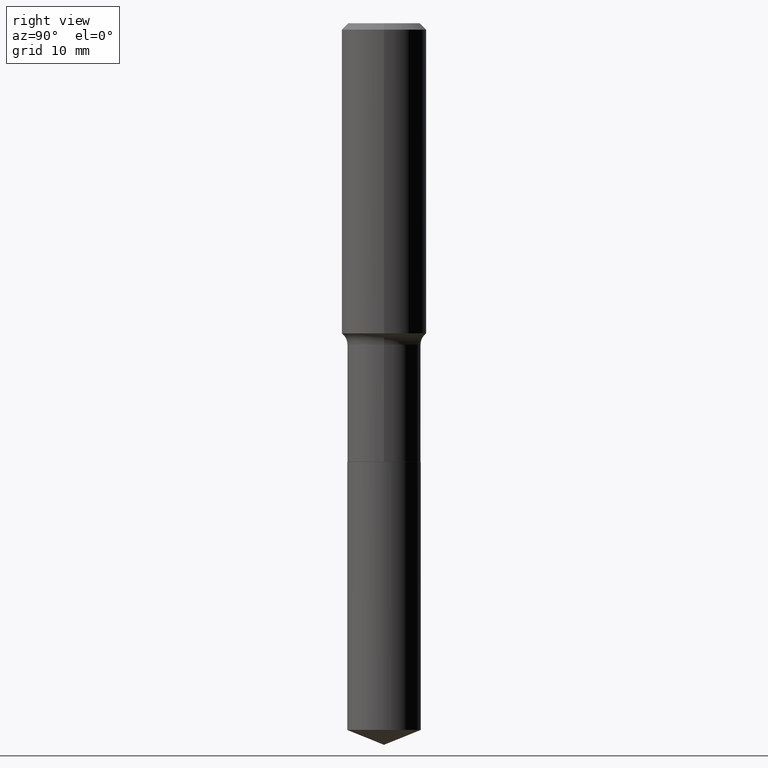
[diagram: clean part render]
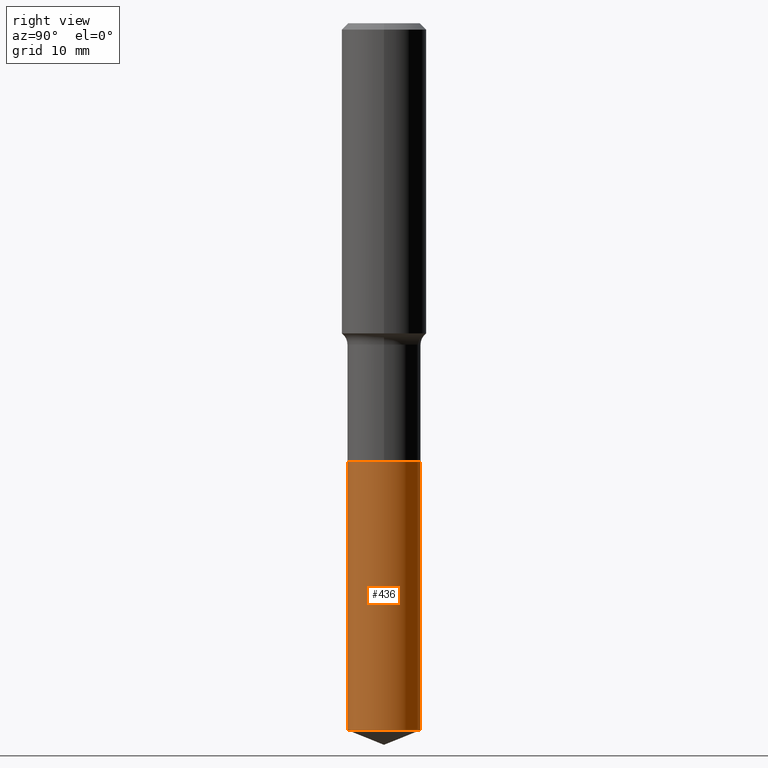
[diagram: same view with one face highlighted and labeled with its STEP entity id]
A machine part, right view. The second image highlights one B-rep face of the part: STEP entity #436.
In plain terms, the highlighted cylindrical surface (partial cylindrical patch) has radius 5.2006 mm, axis along (-0, 0, 1).
Its self-contained STEP definition (entity closure, byte-faithful):
#18 = DIRECTION ( 'NONE',  ( -2.445425754346182208E-29, 3.491542991526886614E-15, 1.000000000000000000 ) ) ;
#38 = DIRECTION ( 'NONE',  ( -2.445425754346182208E-29, 3.491542991526886614E-15, 1.000000000000000000 ) ) ;
#59 = ORIENTED_EDGE ( 'NONE', *, *, #333, .T. ) ;
#75 = CIRCLE ( 'NONE', #255, 0.2047499999999999876 ) ;
#76 = ORIENTED_EDGE ( 'NONE', *, *, #241, .F. ) ;
#108 = LINE ( 'NONE', #482, #192 ) ;
#123 = VERTEX_POINT ( 'NONE', #465 ) ;
#126 = DIRECTION ( 'NONE',  ( -2.445425754346182208E-29, 3.491542991526886614E-15, 1.000000000000000000 ) ) ;
#139 = LINE ( 'NONE', #201, #471 ) ;
#149 = EDGE_LOOP ( 'NONE', ( #59, #464, #76, #410 ) ) ;
#154 = DIRECTION ( 'NONE',  ( -2.445425754346182208E-29, 3.491542991526886220E-15, 1.000000000000000000 ) ) ;
#190 = DIRECTION ( 'NONE',  ( -6.982962677686265922E-15, -1.000000000000000000, 4.002707683024561674E-15 ) ) ;
#192 = VECTOR ( 'NONE', #268, 39.37007874015748143 ) ;
#201 = CARTESIAN_POINT ( 'NONE',  ( 1.454836251468864404E-15, 0.2047499999999914388, -2.440900000000000514 ) ) ;
#230 = DIRECTION ( 'NONE',  ( -6.982962677686265922E-15, -1.000000000000000000, 4.002707683024561674E-15 ) ) ;
#241 = EDGE_CURVE ( 'NONE', #370, #123, #422, .T. ) ;
#253 = CARTESIAN_POINT ( 'NONE',  ( 9.617904982688033762E-29, -1.373200300964548210E-14, -3.932975630260252764 ) ) ;
#255 = AXIS2_PLACEMENT_3D ( 'NONE', #253, #18, #263 ) ;
#260 = CARTESIAN_POINT ( 'NONE',  ( -1.429761608256166261E-15, -0.2047500000000136156, -3.932975630260252320 ) ) ;
#263 = DIRECTION ( 'NONE',  ( -6.982962677686265922E-15, -1.000000000000000000, 2.668471788683041116E-15 ) ) ;
#268 = DIRECTION ( 'NONE',  ( -2.445425754346182208E-29, 3.491542991526886220E-15, 1.000000000000000000 ) ) ;
#279 = CARTESIAN_POINT ( 'NONE',  ( -1.429761608256203140E-15, -0.2047500000000085085, -2.440899999999999181 ) ) ;
#314 = AXIS2_PLACEMENT_3D ( 'NONE', #330, #126, #230 ) ;
#330 = CARTESIAN_POINT ( 'NONE',  ( 5.969144809017299038E-29, -8.522356799982232966E-15, -2.440900000000000070 ) ) ;
#333 = EDGE_CURVE ( 'NONE', #427, #450, #75, .T. ) ;
#370 = VERTEX_POINT ( 'NONE', #279 ) ;
#371 = CYLINDRICAL_SURFACE ( 'NONE', #314, 0.2047499999999999876 ) ;
#380 = CARTESIAN_POINT ( 'NONE',  ( 5.969144809017299038E-29, -8.522356799982232966E-15, -2.440900000000000070 ) ) ;
#410 = ORIENTED_EDGE ( 'NONE', *, *, #474, .F. ) ;
#422 = CIRCLE ( 'NONE', #430, 0.2047499999999999876 ) ;
#427 = VERTEX_POINT ( 'NONE', #260 ) ;
#430 = AXIS2_PLACEMENT_3D ( 'NONE', #380, #38, #190 ) ;
#436 = ADVANCED_FACE ( 'NONE', ( #489 ), #371, .T. ) ;
#450 = VERTEX_POINT ( 'NONE', #481 ) ;
#464 = ORIENTED_EDGE ( 'NONE', *, *, #485, .T. ) ;
#465 = CARTESIAN_POINT ( 'NONE',  ( 1.454836251468901086E-15, 0.2047499999999914388, -2.440900000000000514 ) ) ;
#471 = VECTOR ( 'NONE', #154, 39.37007874015748143 ) ;
#474 = EDGE_CURVE ( 'NONE', #427, #370, #108, .T. ) ;
#481 = CARTESIAN_POINT ( 'NONE',  ( 1.454836251468900297E-15, 0.2047499999999861930, -3.932975630260253208 ) ) ;
#482 = CARTESIAN_POINT ( 'NONE',  ( -1.429761608256203140E-15, -0.2047500000000085085, -2.440899999999999181 ) ) ;
#485 = EDGE_CURVE ( 'NONE', #450, #123, #139, .T. ) ;
#489 = FACE_OUTER_BOUND ( 'NONE', #149, .T. ) ;